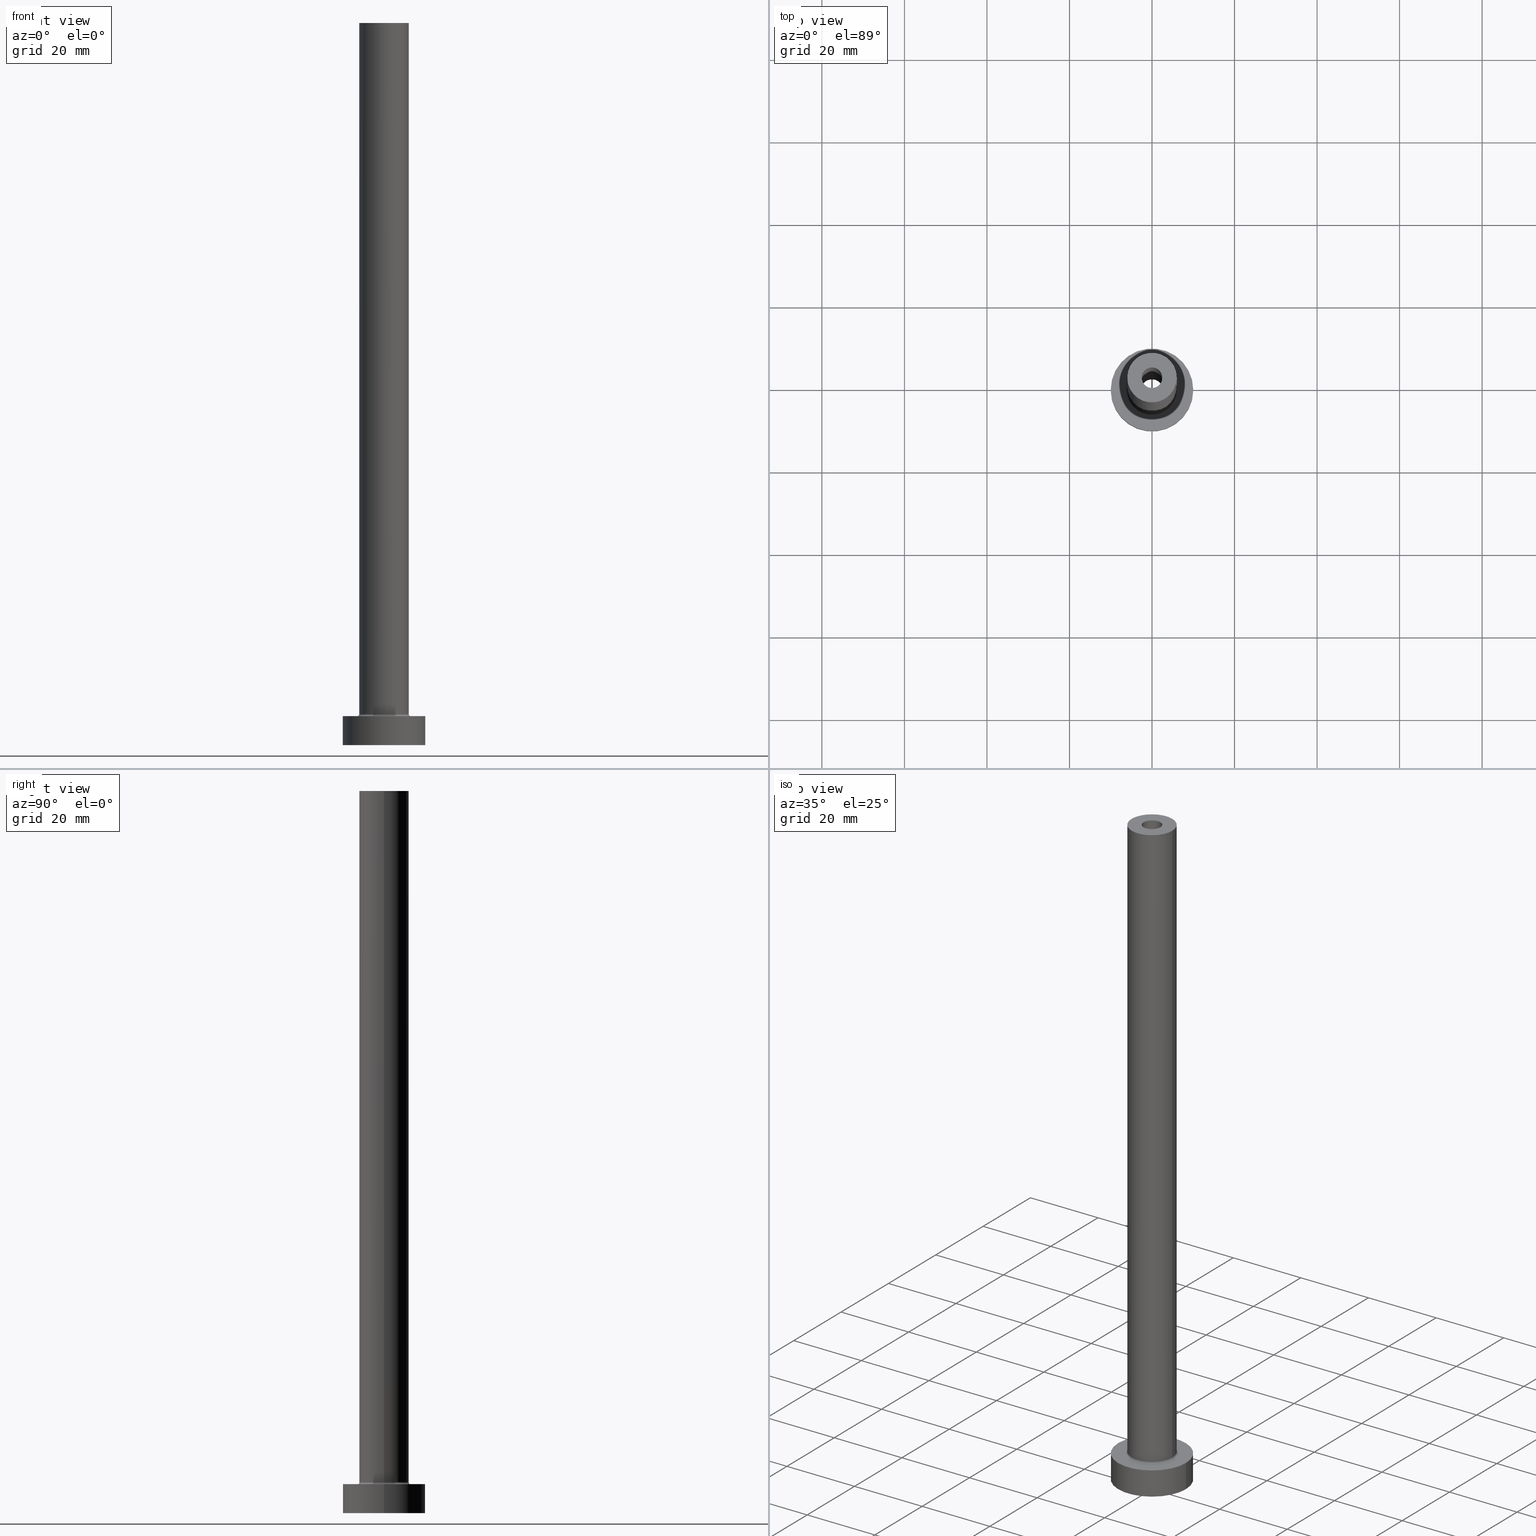
[diagram: canonical four-view strip — front | top / right | iso, engineering-drawing reading convention]
A machine part, canonical four-view strip (front | top / right | iso — engineering-drawing reading convention). The complete STEP part file that produces these views, byte-faithful:
ISO-10303-21;
HEADER;
FILE_DESCRIPTION (( 'STEP AP203' ),
    '1' );
FILE_NAME ('16ac.STEP',
    '2023-02-13T16:47:17',
    ( '' ),
    ( '' ),
    'SwSTEP 2.0',
    'SolidWorks 2019',
    '' );
FILE_SCHEMA (( 'CONFIG_CONTROL_DESIGN' ));
ENDSEC;

DATA;
#1 = DATE_AND_TIME ( #70, #306 ) ;
#2 = LINE ( 'NONE', #429, #175 ) ;
#3 = EDGE_CURVE ( 'NONE', #329, #367, #446, .T. ) ;
#4 = COORDINATED_UNIVERSAL_TIME_OFFSET ( 1, 0, .AHEAD. ) ;
#5 = ORIENTED_EDGE ( 'NONE', *, *, #51, .T. ) ;
#6 =( NAMED_UNIT ( * ) SI_UNIT ( $, .STERADIAN. ) SOLID_ANGLE_UNIT ( ) );
#7 = CIRCLE ( 'NONE', #374, 6.500000000000000888 ) ;
#8 =( NAMED_UNIT ( * ) PLANE_ANGLE_UNIT ( ) SI_UNIT ( $, .RADIAN. ) );
#9 = ORIENTED_EDGE ( 'NONE', *, *, #116, .F. ) ;
#10 = CARTESIAN_POINT ( 'NONE',  ( 0.000000000000000000, 0.000000000000000000, 175.0000000000000284 ) ) ;
#11 = ORIENTED_EDGE ( 'NONE', *, *, #3, .T. ) ;
#12 = APPROVAL_DATE_TIME ( #229, #168 ) ;
#13 = CARTESIAN_POINT ( 'NONE',  ( 0.000000000000000000, 0.000000000000000000, 175.0000000000000284 ) ) ;
#14 = AXIS2_PLACEMENT_3D ( 'NONE', #345, #34, #409 ) ;
#15 = ORIENTED_EDGE ( 'NONE', *, *, #426, .F. ) ;
#16 = EDGE_CURVE ( 'NONE', #222, #292, #304, .T. ) ;
#17 = CARTESIAN_POINT ( 'NONE',  ( 0.000000000000000000, 0.000000000000000000, 175.0000000000000284 ) ) ;
#18 = ORIENTED_EDGE ( 'NONE', *, *, #284, .F. ) ;
#19 = ADVANCED_FACE ( 'NONE', ( #410, #415 ), #383, .F. ) ;
#20 = DIRECTION ( 'NONE',  ( -0.000000000000000000, -0.000000000000000000, -1.000000000000000000 ) ) ;
#21 = EDGE_LOOP ( 'NONE', ( #301, #66 ) ) ;
#22 = AXIS2_PLACEMENT_3D ( 'NONE', #318, #376, #209 ) ;
#23 = CIRCLE ( 'NONE', #235, 10.00000000000000000 ) ;
#24 = ORIENTED_EDGE ( 'NONE', *, *, #132, .F. ) ;
#25 = COORDINATED_UNIVERSAL_TIME_OFFSET ( 1, 0, .AHEAD. ) ;
#26 = CARTESIAN_POINT ( 'NONE',  ( 0.000000000000000000, 0.000000000000000000, 175.0000000000000284 ) ) ;
#27 = DIRECTION ( 'NONE',  ( 0.000000000000000000, 0.000000000000000000, -1.000000000000000000 ) ) ;
#28 = COORDINATED_UNIVERSAL_TIME_OFFSET ( 1, 0, .AHEAD. ) ;
#29 = FACE_OUTER_BOUND ( 'NONE', #76, .T. ) ;
#30 = CARTESIAN_POINT ( 'NONE',  ( 0.000000000000000000, 0.000000000000000000, 0.000000000000000000 ) ) ;
#31 = CIRCLE ( 'NONE', #271, 2.649999999999999911 ) ;
#32 = LOCAL_TIME ( 17, 47, 17.00000000000000000, #360 ) ;
#33 = DIRECTION ( 'NONE',  ( 0.000000000000000000, 0.000000000000000000, 1.000000000000000000 ) ) ;
#34 = DIRECTION ( 'NONE',  ( -0.000000000000000000, -0.000000000000000000, -1.000000000000000000 ) ) ;
#35 = EDGE_CURVE ( 'NONE', #367, #357, #162, .T. ) ;
#36 = PERSON_AND_ORGANIZATION_ROLE ( 'creator' ) ;
#37 = PRODUCT_DEFINITION_SHAPE ( 'NONE', 'NONE',  #199 ) ;
#38 = APPROVAL_STATUS ( 'not_yet_approved' ) ;
#39 = ORIENTED_EDGE ( 'NONE', *, *, #385, .T. ) ;
#40 = ORIENTED_EDGE ( 'NONE', *, *, #433, .F. ) ;
#41 = PERSON_AND_ORGANIZATION ( #378, #83 ) ;
#42 = CARTESIAN_POINT ( 'NONE',  ( 0.000000000000000000, 0.000000000000000000, 0.000000000000000000 ) ) ;
#43 = VERTEX_POINT ( 'NONE', #448 ) ;
#44 = EDGE_CURVE ( 'NONE', #115, #430, #456, .T. ) ;
#45 = VECTOR ( 'NONE', #257, 1000.000000000000000 ) ;
#46 =( GEOMETRIC_REPRESENTATION_CONTEXT ( 3 ) GLOBAL_UNCERTAINTY_ASSIGNED_CONTEXT ( ( #213 ) ) GLOBAL_UNIT_ASSIGNED_CONTEXT ( ( #428, #8, #6 ) ) REPRESENTATION_CONTEXT ( 'NONE', 'WORKASPACE' ) );
#47 = ORIENTED_EDGE ( 'NONE', *, *, #307, .T. ) ;
#48 = DIRECTION ( 'NONE',  ( -0.000000000000000000, -0.000000000000000000, -1.000000000000000000 ) ) ;
#49 = VERTEX_POINT ( 'NONE', #219 ) ;
#50 = PERSON_AND_ORGANIZATION_ROLE ( 'creator' ) ;
#51 = EDGE_CURVE ( 'NONE', #90, #160, #80, .T. ) ;
#52 = DIRECTION ( 'NONE',  ( 1.000000000000000000, 0.000000000000000000, -0.000000000000000000 ) ) ;
#53 = CARTESIAN_POINT ( 'NONE',  ( 6.000000000000000888, 7.347880794884119736E-16, 175.0000000000000284 ) ) ;
#54 = AXIS2_PLACEMENT_3D ( 'NONE', #17, #273, #302 ) ;
#55 = ORIENTED_EDGE ( 'NONE', *, *, #203, .F. ) ;
#56 = DIRECTION ( 'NONE',  ( 0.000000000000000000, 0.000000000000000000, 1.000000000000000000 ) ) ;
#57 = VERTEX_POINT ( 'NONE', #224 ) ;
#58 = DIRECTION ( 'NONE',  ( -1.000000000000000000, 0.000000000000000000, 0.000000000000000000 ) ) ;
#59 = EDGE_LOOP ( 'NONE', ( #246, #338 ) ) ;
#60 = CYLINDRICAL_SURFACE ( 'NONE', #250, 10.00000000000000000 ) ;
#61 = DATE_AND_TIME ( #99, #194 ) ;
#62 = DIRECTION ( 'NONE',  ( 0.000000000000000000, 0.000000000000000000, -1.000000000000000000 ) ) ;
#63 = DIRECTION ( 'NONE',  ( -0.000000000000000000, -0.000000000000000000, -1.000000000000000000 ) ) ;
#64 = CC_DESIGN_PERSON_AND_ORGANIZATION_ASSIGNMENT ( #121, #50, ( #382 ) ) ;
#65 = CARTESIAN_POINT ( 'NONE',  ( 0.000000000000000000, 0.000000000000000000, 7.000000000000000000 ) ) ;
#66 = ORIENTED_EDGE ( 'NONE', *, *, #268, .T. ) ;
#67 = CIRCLE ( 'NONE', #54, 2.500000000000000000 ) ;
#68 = CARTESIAN_POINT ( 'NONE',  ( 0.000000000000000000, 0.000000000000000000, 137.4953318805773961 ) ) ;
#69 = DIRECTION ( 'NONE',  ( 0.000000000000000000, 0.000000000000000000, 1.000000000000000000 ) ) ;
#70 = CALENDAR_DATE ( 2023, 13, 2 ) ;
#71 = EDGE_CURVE ( 'NONE', #90, #336, #2, .T. ) ;
#72 = EDGE_LOOP ( 'NONE', ( #439, #174, #55, #373 ) ) ;
#73 = AXIS2_PLACEMENT_3D ( 'NONE', #30, #244, #216 ) ;
#74 = CIRCLE ( 'NONE', #228, 2.500000000000000000 ) ;
#75 = PLANE ( 'NONE',  #163 ) ;
#76 = EDGE_LOOP ( 'NONE', ( #18, #11, #198, #316 ) ) ;
#77 = ADVANCED_FACE ( 'NONE', ( #149 ), #230, .T. ) ;
#78 = CARTESIAN_POINT ( 'NONE',  ( 0.000000000000000000, 0.000000000000000000, 0.000000000000000000 ) ) ;
#79 = DIRECTION ( 'NONE',  ( -0.000000000000000000, -0.000000000000000000, -1.000000000000000000 ) ) ;
#80 = CIRCLE ( 'NONE', #341, 6.000000000000000888 ) ;
#81 = PERSON_AND_ORGANIZATION_ROLE ( 'design_supplier' ) ;
#82 = AXIS2_PLACEMENT_3D ( 'NONE', #317, #177, #278 ) ;
#83 = ORGANIZATION ( 'NEUR�EN�', 'NEUR�EN�', '' ) ;
#84 = CC_DESIGN_DATE_AND_TIME_ASSIGNMENT ( #61, #362, ( #144 ) ) ;
#85 = CALENDAR_DATE ( 2023, 13, 2 ) ;
#86 = CARTESIAN_POINT ( 'NONE',  ( 0.000000000000000000, 0.000000000000000000, 7.500000000000007105 ) ) ;
#87 = ADVANCED_FACE ( 'NONE', ( #392 ), #288, .F. ) ;
#88 = EDGE_LOOP ( 'NONE', ( #355, #344, #207, #196 ) ) ;
#89 = DIRECTION ( 'NONE',  ( -0.000000000000000000, -0.000000000000000000, -1.000000000000000000 ) ) ;
#90 = VERTEX_POINT ( 'NONE', #185 ) ;
#91 = PLANE ( 'NONE',  #122 ) ;
#92 = VECTOR ( 'NONE', #170, 1000.000000000000000 ) ;
#93 = DIRECTION ( 'NONE',  ( -0.000000000000000000, -0.000000000000000000, -1.000000000000000000 ) ) ;
#94 = ORIENTED_EDGE ( 'NONE', *, *, #445, .T. ) ;
#95 = ADVANCED_FACE ( 'NONE', ( #154 ), #325, .T. ) ;
#96 = FACE_OUTER_BOUND ( 'NONE', #289, .T. ) ;
#97 = CARTESIAN_POINT ( 'NONE',  ( 0.000000000000000000, 0.000000000000000000, 7.000000000000000000 ) ) ;
#98 = CIRCLE ( 'NONE', #381, 10.00000000000000000 ) ;
#99 = CALENDAR_DATE ( 2023, 13, 2 ) ;
#100 = APPROVAL_PERSON_ORGANIZATION ( #397, #148, #298 ) ;
#101 = ADVANCED_FACE ( 'NONE', ( #291, #114 ), #75, .F. ) ;
#102 = CARTESIAN_POINT ( 'NONE',  ( -6.000000000000000888, 0.000000000000000000, 7.500000000000007105 ) ) ;
#103 = EDGE_CURVE ( 'NONE', #357, #367, #23, .T. ) ;
#104 = FACE_OUTER_BOUND ( 'NONE', #444, .T. ) ;
#105 = CARTESIAN_POINT ( 'NONE',  ( 0.000000000000000000, 0.000000000000000000, 0.000000000000000000 ) ) ;
#106 = DIRECTION ( 'NONE',  ( 0.000000000000000000, 0.000000000000000000, 1.000000000000000000 ) ) ;
#107 = AXIS2_PLACEMENT_3D ( 'NONE', #105, #69, #352 ) ;
#108 = AXIS2_PLACEMENT_3D ( 'NONE', #395, #424, #422 ) ;
#109 = DIRECTION ( 'NONE',  ( 1.224646799147353207E-16, 1.000000000000000000, -0.000000000000000000 ) ) ;
#110 = DIRECTION ( 'NONE',  ( 0.000000000000000000, 0.000000000000000000, 1.000000000000000000 ) ) ;
#111 = ORIENTED_EDGE ( 'NONE', *, *, #44, .F. ) ;
#112 = AXIS2_PLACEMENT_3D ( 'NONE', #218, #260, #390 ) ;
#113 = CARTESIAN_POINT ( 'NONE',  ( 0.000000000000000000, 0.000000000000000000, 130.0000000000000000 ) ) ;
#114 = FACE_OUTER_BOUND ( 'NONE', #118, .T. ) ;
#115 = VERTEX_POINT ( 'NONE', #126 ) ;
#116 = EDGE_CURVE ( 'NONE', #160, #57, #128, .T. ) ;
#117 = CARTESIAN_POINT ( 'NONE',  ( 0.000000000000000000, 0.000000000000000000, 175.0000000000000284 ) ) ;
#118 = EDGE_LOOP ( 'NONE', ( #232, #237 ) ) ;
#119 = APPROVAL_ROLE ( '' ) ;
#120 = PRODUCT_RELATED_PRODUCT_CATEGORY ( 'detail', '', ( #457 ) ) ;
#121 = PERSON_AND_ORGANIZATION ( #378, #83 ) ;
#122 = AXIS2_PLACEMENT_3D ( 'NONE', #339, #369, #52 ) ;
#123 = DIRECTION ( 'NONE',  ( 1.000000000000000000, 0.000000000000000000, 0.000000000000000000 ) ) ;
#124 = ORIENTED_EDGE ( 'NONE', *, *, #426, .T. ) ;
#125 = APPROVAL_STATUS ( 'not_yet_approved' ) ;
#126 = CARTESIAN_POINT ( 'NONE',  ( -2.500000000000000000, 0.000000000000000000, 175.0000000000000284 ) ) ;
#127 = ORIENTED_EDGE ( 'NONE', *, *, #35, .F. ) ;
#128 = LINE ( 'NONE', #53, #137 ) ;
#129 = ORIENTED_EDGE ( 'NONE', *, *, #214, .T. ) ;
#130 = CARTESIAN_POINT ( 'NONE',  ( -10.00000000000000000, 0.000000000000000000, 7.000000000000000000 ) ) ;
#131 = AXIS2_PLACEMENT_3D ( 'NONE', #13, #195, #335 ) ;
#132 = EDGE_CURVE ( 'NONE', #270, #115, #67, .T. ) ;
#133 = DIRECTION ( 'NONE',  ( 0.000000000000000000, 0.000000000000000000, -1.000000000000000000 ) ) ;
#134 = ORIENTED_EDGE ( 'NONE', *, *, #387, .F. ) ;
#135 = DIRECTION ( 'NONE',  ( -1.000000000000000000, 0.000000000000000000, 0.000000000000000000 ) ) ;
#136 = DIRECTION ( 'NONE',  ( 1.000000000000000000, 0.000000000000000000, 0.000000000000000000 ) ) ;
#137 = VECTOR ( 'NONE', #93, 1000.000000000000000 ) ;
#138 = CARTESIAN_POINT ( 'NONE',  ( 0.000000000000000000, 0.000000000000000000, 130.0000000000000000 ) ) ;
#139 = CARTESIAN_POINT ( 'NONE',  ( 2.500000000000000000, 3.061616997868383141E-16, 175.0000000000000284 ) ) ;
#140 = CARTESIAN_POINT ( 'NONE',  ( 10.00000000000000000, 1.224646799147353256E-15, 7.000000000000000000 ) ) ;
#141 = CARTESIAN_POINT ( 'NONE',  ( -2.649999999999999911, 0.000000000000000000, 0.000000000000000000 ) ) ;
#142 = EDGE_LOOP ( 'NONE', ( #134, #24 ) ) ;
#143 = VECTOR ( 'NONE', #89, 1000.000000000000000 ) ;
#144 = SECURITY_CLASSIFICATION ( '', '', #332 ) ;
#145 = COORDINATED_UNIVERSAL_TIME_OFFSET ( 1, 0, .AHEAD. ) ;
#146 = CARTESIAN_POINT ( 'NONE',  ( 0.000000000000000000, 0.000000000000000000, 130.0000000000000000 ) ) ;
#147 = DIRECTION ( 'NONE',  ( -0.000000000000000000, -0.000000000000000000, -1.000000000000000000 ) ) ;
#148 = APPROVAL ( #267, 'NEUR�EN�' ) ;
#149 = FACE_OUTER_BOUND ( 'NONE', #225, .T. ) ;
#150 = CIRCLE ( 'NONE', #293, 6.000000000000000888 ) ;
#151 = PERSON_AND_ORGANIZATION_ROLE ( 'design_owner' ) ;
#152 = ORIENTED_EDGE ( 'NONE', *, *, #433, .T. ) ;
#153 = DIRECTION ( 'NONE',  ( 1.000000000000000000, 0.000000000000000000, 0.000000000000000000 ) ) ;
#154 = FACE_OUTER_BOUND ( 'NONE', #259, .T. ) ;
#155 = VERTEX_POINT ( 'NONE', #363 ) ;
#156 = CARTESIAN_POINT ( 'NONE',  ( 2.649999999999999911, 3.245314017740485962E-16, 0.000000000000000000 ) ) ;
#157 = CYLINDRICAL_SURFACE ( 'NONE', #210, 2.500000000000000000 ) ;
#158 = ORIENTED_EDGE ( 'NONE', *, *, #307, .F. ) ;
#159 = DIRECTION ( 'NONE',  ( 1.000000000000000000, 0.000000000000000000, 0.000000000000000000 ) ) ;
#160 = VERTEX_POINT ( 'NONE', #197 ) ;
#161 = ADVANCED_FACE ( 'NONE', ( #300, #96 ), #236, .T. ) ;
#162 = CIRCLE ( 'NONE', #22, 10.00000000000000000 ) ;
#163 = AXIS2_PLACEMENT_3D ( 'NONE', #261, #319, #356 ) ;
#164 = AXIS2_PLACEMENT_3D ( 'NONE', #117, #147, #255 ) ;
#165 = ORIENTED_EDGE ( 'NONE', *, *, #132, .T. ) ;
#166 = CC_DESIGN_SECURITY_CLASSIFICATION ( #144, ( #382 ) ) ;
#167 = DIRECTION ( 'NONE',  ( 1.000000000000000000, 0.000000000000000000, 0.000000000000000000 ) ) ;
#168 = APPROVAL ( #125, 'NEUR�EN�' ) ;
#169 = ORIENTED_EDGE ( 'NONE', *, *, #284, .T. ) ;
#170 = DIRECTION ( 'NONE',  ( 0.000000000000000000, 0.000000000000000000, -1.000000000000000000 ) ) ;
#171 = EDGE_LOOP ( 'NONE', ( #40, #39, #47, #437 ) ) ;
#172 = PERSON_AND_ORGANIZATION_ROLE ( 'classification_officer' ) ;
#173 = CARTESIAN_POINT ( 'NONE',  ( 6.500000000000000888, 0.000000000000000000, 7.500000000000007105 ) ) ;
#174 = ORIENTED_EDGE ( 'NONE', *, *, #359, .T. ) ;
#175 = VECTOR ( 'NONE', #48, 1000.000000000000000 ) ;
#176 = MANIFOLD_SOLID_BREP ( 'Odebrat vysunut�m4', #411 ) ;
#177 = DIRECTION ( 'NONE',  ( 0.000000000000000000, 0.000000000000000000, 1.000000000000000000 ) ) ;
#178 = DIRECTION ( 'NONE',  ( 0.000000000000000000, 0.000000000000000000, 1.000000000000000000 ) ) ;
#179 = ORIENTED_EDGE ( 'NONE', *, *, #346, .F. ) ;
#180 = DIRECTION ( 'NONE',  ( 0.000000000000000000, 0.000000000000000000, 1.000000000000000000 ) ) ;
#181 = APPLICATION_CONTEXT ( 'configuration controlled 3d designs of mechanical parts and assemblies' ) ;
#182 = AXIS2_PLACEMENT_3D ( 'NONE', #10, #269, #272 ) ;
#183 = FACE_OUTER_BOUND ( 'NONE', #72, .T. ) ;
#184 = CC_DESIGN_PERSON_AND_ORGANIZATION_ASSIGNMENT ( #41, #151, ( #457 ) ) ;
#185 = CARTESIAN_POINT ( 'NONE',  ( -6.000000000000000888, 0.000000000000000000, 175.0000000000000284 ) ) ;
#186 = ORIENTED_EDGE ( 'NONE', *, *, #454, .F. ) ;
#187 = CARTESIAN_POINT ( 'NONE',  ( 0.000000000000000000, 0.000000000000000000, 175.0000000000000284 ) ) ;
#188 = ORIENTED_EDGE ( 'NONE', *, *, #217, .T. ) ;
#189 = CIRCLE ( 'NONE', #412, 2.649999999999999911 ) ;
#190 = ORIENTED_EDGE ( 'NONE', *, *, #71, .F. ) ;
#191 = CARTESIAN_POINT ( 'NONE',  ( -10.00000000000000000, 0.000000000000000000, 7.000000000000000000 ) ) ;
#192 = ORIENTED_EDGE ( 'NONE', *, *, #116, .T. ) ;
#193 = EDGE_LOOP ( 'NONE', ( #234, #127 ) ) ;
#194 = LOCAL_TIME ( 17, 47, 17.00000000000000000, #28 ) ;
#195 = DIRECTION ( 'NONE',  ( 0.000000000000000000, 0.000000000000000000, 1.000000000000000000 ) ) ;
#196 = ORIENTED_EDGE ( 'NONE', *, *, #268, .F. ) ;
#197 = CARTESIAN_POINT ( 'NONE',  ( 6.000000000000000888, 7.347880794884119736E-16, 175.0000000000000284 ) ) ;
#198 = ORIENTED_EDGE ( 'NONE', *, *, #35, .T. ) ;
#199 = PRODUCT_DEFINITION ( 'NEZN�M�', '', #382, #313 ) ;
#200 = CARTESIAN_POINT ( 'NONE',  ( 0.000000000000000000, 0.000000000000000000, 0.000000000000000000 ) ) ;
#201 = CIRCLE ( 'NONE', #368, 0.5000000000000004441 ) ;
#202 = APPROVAL_PERSON_ORGANIZATION ( #274, #168, #449 ) ;
#203 = EDGE_CURVE ( 'NONE', #155, #303, #7, .T. ) ;
#204 = CARTESIAN_POINT ( 'NONE',  ( -6.500000000000000888, 7.960204194457796463E-16, 7.000000000000002665 ) ) ;
#205 = CARTESIAN_POINT ( 'NONE',  ( -2.500000000000000000, 0.000000000000000000, 175.0000000000000284 ) ) ;
#206 = DIRECTION ( 'NONE',  ( 1.000000000000000000, 0.000000000000000000, 0.000000000000000000 ) ) ;
#207 = ORIENTED_EDGE ( 'NONE', *, *, #333, .T. ) ;
#208 = CARTESIAN_POINT ( 'NONE',  ( -2.500000000000000000, 0.000000000000000000, 130.0000000000000000 ) ) ;
#209 = DIRECTION ( 'NONE',  ( 1.000000000000000000, 0.000000000000000000, 0.000000000000000000 ) ) ;
#210 = AXIS2_PLACEMENT_3D ( 'NONE', #245, #380, #135 ) ;
#211 = DIRECTION ( 'NONE',  ( 0.000000000000000000, 0.000000000000000000, -1.000000000000000000 ) ) ;
#212 = EDGE_CURVE ( 'NONE', #160, #90, #220, .T. ) ;
#213 = UNCERTAINTY_MEASURE_WITH_UNIT (LENGTH_MEASURE( 1.000000000000000082E-05 ), #428, 'distance_accuracy_value', 'NONE');
#214 = EDGE_CURVE ( 'NONE', #262, #357, #299, .T. ) ;
#215 = PERSON_AND_ORGANIZATION ( #378, #83 ) ;
#216 = DIRECTION ( 'NONE',  ( 1.000000000000000000, 0.000000000000000000, 0.000000000000000000 ) ) ;
#217 = EDGE_CURVE ( 'NONE', #336, #57, #150, .T. ) ;
#218 = CARTESIAN_POINT ( 'NONE',  ( 0.000000000000000000, 0.000000000000000000, 7.500000000000007105 ) ) ;
#219 = CARTESIAN_POINT ( 'NONE',  ( 2.500000000000000000, 3.061616997868383141E-16, 130.0000000000000000 ) ) ;
#220 = CIRCLE ( 'NONE', #182, 6.000000000000000888 ) ;
#221 = ADVANCED_FACE ( 'NONE', ( #402 ), #405, .F. ) ;
#222 = VERTEX_POINT ( 'NONE', #156 ) ;
#223 = MECHANICAL_CONTEXT ( 'NONE', #394, 'mechanical' ) ;
#224 = CARTESIAN_POINT ( 'NONE',  ( 6.000000000000000888, 7.347880794884119736E-16, 7.500000000000007105 ) ) ;
#225 = EDGE_LOOP ( 'NONE', ( #417, #192, #231, #190 ) ) ;
#226 = CARTESIAN_POINT ( 'NONE',  ( 0.000000000000000000, 0.000000000000000000, 175.0000000000000284 ) ) ;
#227 = VECTOR ( 'NONE', #280, 1000.000000000000000 ) ;
#228 = AXIS2_PLACEMENT_3D ( 'NONE', #26, #33, #413 ) ;
#229 = DATE_AND_TIME ( #85, #354 ) ;
#230 = CYLINDRICAL_SURFACE ( 'NONE', #164, 6.000000000000000888 ) ;
#231 = ORIENTED_EDGE ( 'NONE', *, *, #418, .T. ) ;
#232 = ORIENTED_EDGE ( 'NONE', *, *, #391, .F. ) ;
#233 = CC_DESIGN_DATE_AND_TIME_ASSIGNMENT ( #290, #286, ( #199 ) ) ;
#234 = ORIENTED_EDGE ( 'NONE', *, *, #103, .F. ) ;
#235 = AXIS2_PLACEMENT_3D ( 'NONE', #42, #56, #441 ) ;
#236 = PLANE ( 'NONE',  #131 ) ;
#237 = ORIENTED_EDGE ( 'NONE', *, *, #385, .F. ) ;
#238 = EDGE_LOOP ( 'NONE', ( #340, #124, #186, #111 ) ) ;
#239 = CARTESIAN_POINT ( 'NONE',  ( 0.000000000000000000, 0.000000000000000000, 7.500000000000007105 ) ) ;
#240 = EDGE_LOOP ( 'NONE', ( #406, #152, #294, #158 ) ) ;
#241 = PERSON_AND_ORGANIZATION ( #378, #83 ) ;
#242 = DIRECTION ( 'NONE',  ( -0.000000000000000000, -0.000000000000000000, -1.000000000000000000 ) ) ;
#243 = AXIS2_PLACEMENT_3D ( 'NONE', #435, #133, #58 ) ;
#244 = DIRECTION ( 'NONE',  ( -0.000000000000000000, -0.000000000000000000, -1.000000000000000000 ) ) ;
#245 = CARTESIAN_POINT ( 'NONE',  ( 0.000000000000000000, 0.000000000000000000, 175.0000000000000284 ) ) ;
#246 = ORIENTED_EDGE ( 'NONE', *, *, #454, .T. ) ;
#247 = DIRECTION ( 'NONE',  ( -1.000000000000000000, 0.000000000000000000, 0.000000000000000000 ) ) ;
#248 = ADVANCED_FACE ( 'NONE', ( #366, #372 ), #91, .T. ) ;
#249 = CARTESIAN_POINT ( 'NONE',  ( 0.000000000000000000, 0.000000000000000000, 7.000000000000000000 ) ) ;
#250 = AXIS2_PLACEMENT_3D ( 'NONE', #97, #242, #247 ) ;
#251 = DIRECTION ( 'NONE',  ( 0.000000000000000000, 0.000000000000000000, 1.000000000000000000 ) ) ;
#252 = APPROVAL ( #38, 'NEUR�EN�' ) ;
#253 = DIRECTION ( 'NONE',  ( 1.000000000000000000, 0.000000000000000000, 0.000000000000000000 ) ) ;
#254 = ADVANCED_FACE ( 'NONE', ( #337 ), #404, .F. ) ;
#255 = DIRECTION ( 'NONE',  ( -1.000000000000000000, 0.000000000000000000, 0.000000000000000000 ) ) ;
#256 = EDGE_LOOP ( 'NONE', ( #179, #393 ) ) ;
#257 = DIRECTION ( 'NONE',  ( 0.000000000000000000, 0.000000000000000000, -1.000000000000000000 ) ) ;
#258 = DIRECTION ( 'NONE',  ( 1.000000000000000000, 0.000000000000000000, 0.000000000000000000 ) ) ;
#259 = EDGE_LOOP ( 'NONE', ( #9, #434, #265, #188 ) ) ;
#260 = DIRECTION ( 'NONE',  ( 0.000000000000000000, 0.000000000000000000, 1.000000000000000000 ) ) ;
#261 = CARTESIAN_POINT ( 'NONE',  ( 0.000000000000000000, 0.000000000000000000, 130.0000000000000000 ) ) ;
#262 = VERTEX_POINT ( 'NONE', #191 ) ;
#263 = LOCAL_TIME ( 17, 47, 17.00000000000000000, #145 ) ;
#264 = FACE_OUTER_BOUND ( 'NONE', #361, .T. ) ;
#265 = ORIENTED_EDGE ( 'NONE', *, *, #71, .T. ) ;
#266 = ADVANCED_FACE ( 'NONE', ( #264 ), #157, .F. ) ;
#267 = APPROVAL_STATUS ( 'not_yet_approved' ) ;
#268 = EDGE_CURVE ( 'NONE', #303, #155, #436, .T. ) ;
#269 = DIRECTION ( 'NONE',  ( 0.000000000000000000, 0.000000000000000000, 1.000000000000000000 ) ) ;
#270 = VERTEX_POINT ( 'NONE', #139 ) ;
#271 = AXIS2_PLACEMENT_3D ( 'NONE', #138, #178, #136 ) ;
#272 = DIRECTION ( 'NONE',  ( 1.000000000000000000, 0.000000000000000000, 0.000000000000000000 ) ) ;
#273 = DIRECTION ( 'NONE',  ( 0.000000000000000000, 0.000000000000000000, 1.000000000000000000 ) ) ;
#274 = PERSON_AND_ORGANIZATION ( #378, #83 ) ;
#275 = CYLINDRICAL_SURFACE ( 'NONE', #389, 2.649999999999999911 ) ;
#276 = CARTESIAN_POINT ( 'NONE',  ( 10.00000000000000000, 1.224646799147353256E-15, 7.000000000000000000 ) ) ;
#277 = AXIS2_PLACEMENT_3D ( 'NONE', #113, #110, #253 ) ;
#278 = DIRECTION ( 'NONE',  ( 1.000000000000000000, 0.000000000000000000, 0.000000000000000000 ) ) ;
#279 = DIRECTION ( 'NONE',  ( 0.000000000000000000, -1.000000000000000000, 0.000000000000000000 ) ) ;
#280 = DIRECTION ( 'NONE',  ( -0.000000000000000000, -0.000000000000000000, -1.000000000000000000 ) ) ;
#281 = LINE ( 'NONE', #312, #92 ) ;
#282 = VECTOR ( 'NONE', #27, 1000.000000000000000 ) ;
#283 = CIRCLE ( 'NONE', #82, 2.649999999999999911 ) ;
#284 = EDGE_CURVE ( 'NONE', #329, #262, #98, .T. ) ;
#285 = AXIS2_PLACEMENT_3D ( 'NONE', #78, #180, #153 ) ;
#286 = DATE_TIME_ROLE ( 'creation_date' ) ;
#287 = CARTESIAN_POINT ( 'NONE',  ( 2.649999999999999911, 3.245314017740485962E-16, 137.4953318805773961 ) ) ;
#288 = CYLINDRICAL_SURFACE ( 'NONE', #450, 2.500000000000000000 ) ;
#289 = EDGE_LOOP ( 'NONE', ( #5, #400 ) ) ;
#290 = DATE_AND_TIME ( #459, #263 ) ;
#291 = FACE_BOUND ( 'NONE', #59, .T. ) ;
#292 = VERTEX_POINT ( 'NONE', #141 ) ;
#293 = AXIS2_PLACEMENT_3D ( 'NONE', #239, #438, #159 ) ;
#294 = ORIENTED_EDGE ( 'NONE', *, *, #16, .T. ) ;
#295 = APPLICATION_PROTOCOL_DEFINITION ( 'international standard', 'config_control_design', 1994, #181 ) ;
#296 = DIRECTION ( 'NONE',  ( 0.000000000000000000, 0.000000000000000000, 1.000000000000000000 ) ) ;
#297 = AXIS2_PLACEMENT_3D ( 'NONE', #65, #63, #167 ) ;
#298 = APPROVAL_ROLE ( '' ) ;
#299 = LINE ( 'NONE', #130, #143 ) ;
#300 = FACE_BOUND ( 'NONE', #142, .T. ) ;
#301 = ORIENTED_EDGE ( 'NONE', *, *, #203, .T. ) ;
#302 = DIRECTION ( 'NONE',  ( 1.000000000000000000, 0.000000000000000000, 0.000000000000000000 ) ) ;
#303 = VERTEX_POINT ( 'NONE', #204 ) ;
#304 = CIRCLE ( 'NONE', #73, 2.649999999999999911 ) ;
#305 = CIRCLE ( 'NONE', #108, 10.00000000000000000 ) ;
#306 = LOCAL_TIME ( 17, 47, 17.00000000000000000, #4 ) ;
#307 = EDGE_CURVE ( 'NONE', #43, #292, #281, .T. ) ;
#308 = CARTESIAN_POINT ( 'NONE',  ( -10.00000000000000000, 0.000000000000000000, 0.000000000000000000 ) ) ;
#309 = CARTESIAN_POINT ( 'NONE',  ( 0.000000000000000000, 0.000000000000000000, 7.500000000000007105 ) ) ;
#310 = CC_DESIGN_PERSON_AND_ORGANIZATION_ASSIGNMENT ( #215, #36, ( #199 ) ) ;
#311 = APPROVAL_DATE_TIME ( #408, #148 ) ;
#312 = CARTESIAN_POINT ( 'NONE',  ( -2.649999999999999911, 0.000000000000000000, 137.4953318805773961 ) ) ;
#313 = DESIGN_CONTEXT ( 'detailed design', #181, 'design' ) ;
#314 = VECTOR ( 'NONE', #62, 1000.000000000000000 ) ;
#315 = FACE_OUTER_BOUND ( 'NONE', #240, .T. ) ;
#316 = ORIENTED_EDGE ( 'NONE', *, *, #214, .F. ) ;
#317 = CARTESIAN_POINT ( 'NONE',  ( 0.000000000000000000, 0.000000000000000000, 130.0000000000000000 ) ) ;
#318 = CARTESIAN_POINT ( 'NONE',  ( 0.000000000000000000, 0.000000000000000000, 0.000000000000000000 ) ) ;
#319 = DIRECTION ( 'NONE',  ( 0.000000000000000000, 0.000000000000000000, 1.000000000000000000 ) ) ;
#320 = AXIS2_PLACEMENT_3D ( 'NONE', #226, #79, #432 ) ;
#321 = CC_DESIGN_APPROVAL ( #168, ( #144 ) ) ;
#322 = DIRECTION ( 'NONE',  ( 0.000000000000000000, 0.000000000000000000, 1.000000000000000000 ) ) ;
#323 = ORIENTED_EDGE ( 'NONE', *, *, #44, .T. ) ;
#324 = APPLICATION_PROTOCOL_DEFINITION ( 'international standard', 'config_control_design', 1994, #394 ) ;
#325 = CYLINDRICAL_SURFACE ( 'NONE', #320, 6.000000000000000888 ) ;
#326 = DIRECTION ( 'NONE',  ( 0.000000000000000000, 0.000000000000000000, 1.000000000000000000 ) ) ;
#327 = ORIENTED_EDGE ( 'NONE', *, *, #3, .F. ) ;
#328 = CIRCLE ( 'NONE', #350, 6.000000000000000888 ) ;
#329 = VERTEX_POINT ( 'NONE', #276 ) ;
#330 = ADVANCED_FACE ( 'NONE', ( #315 ), #275, .F. ) ;
#331 = ORIENTED_EDGE ( 'NONE', *, *, #103, .T. ) ;
#332 = SECURITY_CLASSIFICATION_LEVEL ( 'unclassified' ) ;
#333 = EDGE_CURVE ( 'NONE', #57, #155, #419, .T. ) ;
#334 = CARTESIAN_POINT ( 'NONE',  ( 0.000000000000000000, 0.000000000000000000, 7.000000000000000000 ) ) ;
#335 = DIRECTION ( 'NONE',  ( 1.000000000000000000, 0.000000000000000000, -0.000000000000000000 ) ) ;
#336 = VERTEX_POINT ( 'NONE', #102 ) ;
#337 = FACE_OUTER_BOUND ( 'NONE', #88, .T. ) ;
#338 = ORIENTED_EDGE ( 'NONE', *, *, #461, .T. ) ;
#339 = CARTESIAN_POINT ( 'NONE',  ( 0.000000000000000000, 0.000000000000000000, 7.000000000000000000 ) ) ;
#340 = ORIENTED_EDGE ( 'NONE', *, *, #387, .T. ) ;
#341 = AXIS2_PLACEMENT_3D ( 'NONE', #187, #322, #258 ) ;
#342 = CIRCLE ( 'NONE', #427, 2.500000000000000000 ) ;
#343 = APPROVAL_PERSON_ORGANIZATION ( #431, #252, #119 ) ;
#344 = ORIENTED_EDGE ( 'NONE', *, *, #418, .F. ) ;
#345 = CARTESIAN_POINT ( 'NONE',  ( 0.000000000000000000, 0.000000000000000000, 7.000000000000000000 ) ) ;
#346 = EDGE_CURVE ( 'NONE', #292, #222, #189, .T. ) ;
#347 = CALENDAR_DATE ( 2023, 13, 2 ) ;
#348 = CARTESIAN_POINT ( 'NONE',  ( 10.00000000000000000, 1.224646799147353256E-15, 0.000000000000000000 ) ) ;
#349 = LINE ( 'NONE', #287, #45 ) ;
#350 = AXIS2_PLACEMENT_3D ( 'NONE', #309, #251, #414 ) ;
#351 = DIRECTION ( 'NONE',  ( -0.000000000000000000, -0.000000000000000000, -1.000000000000000000 ) ) ;
#352 = DIRECTION ( 'NONE',  ( 1.000000000000000000, 0.000000000000000000, -0.000000000000000000 ) ) ;
#353 = AXIS2_PLACEMENT_3D ( 'NONE', #173, #279, #211 ) ;
#354 = LOCAL_TIME ( 17, 47, 17.00000000000000000, #25 ) ;
#355 = ORIENTED_EDGE ( 'NONE', *, *, #359, .F. ) ;
#356 = DIRECTION ( 'NONE',  ( 1.000000000000000000, 0.000000000000000000, -0.000000000000000000 ) ) ;
#357 = VERTEX_POINT ( 'NONE', #308 ) ;
#358 = TOROIDAL_SURFACE ( 'NONE', #112, 6.500000000000000888, 0.5000000000000000000 ) ;
#359 = EDGE_CURVE ( 'NONE', #336, #303, #201, .T. ) ;
#360 = COORDINATED_UNIVERSAL_TIME_OFFSET ( 1, 0, .AHEAD. ) ;
#361 = EDGE_LOOP ( 'NONE', ( #15, #165, #323, #364 ) ) ;
#362 = DATE_TIME_ROLE ( 'classification_date' ) ;
#363 = CARTESIAN_POINT ( 'NONE',  ( 6.500000000000000888, 0.000000000000000000, 7.000000000000002665 ) ) ;
#364 = ORIENTED_EDGE ( 'NONE', *, *, #461, .F. ) ;
#365 = PERSON_AND_ORGANIZATION ( #378, #83 ) ;
#366 = FACE_BOUND ( 'NONE', #21, .T. ) ;
#367 = VERTEX_POINT ( 'NONE', #348 ) ;
#368 = AXIS2_PLACEMENT_3D ( 'NONE', #377, #109, #416 ) ;
#369 = DIRECTION ( 'NONE',  ( 0.000000000000000000, 0.000000000000000000, 1.000000000000000000 ) ) ;
#370 = ORIENTED_EDGE ( 'NONE', *, *, #445, .F. ) ;
#371 = ADVANCED_FACE ( 'NONE', ( #29 ), #452, .T. ) ;
#372 = FACE_OUTER_BOUND ( 'NONE', #440, .T. ) ;
#373 = ORIENTED_EDGE ( 'NONE', *, *, #333, .F. ) ;
#374 = AXIS2_PLACEMENT_3D ( 'NONE', #334, #20, #442 ) ;
#375 = LINE ( 'NONE', #379, #314 ) ;
#376 = DIRECTION ( 'NONE',  ( 0.000000000000000000, 0.000000000000000000, 1.000000000000000000 ) ) ;
#377 = CARTESIAN_POINT ( 'NONE',  ( -6.500000000000000888, 7.960204194457796463E-16, 7.500000000000007105 ) ) ;
#378 = PERSON ( 'NEUR�EN�', 'NEUR�EN�', 'NEUR�EN�', ('NEUR�EN�'), ('NEUR�EN�'), ('NEUR�EN�') ) ;
#379 = CARTESIAN_POINT ( 'NONE',  ( 2.500000000000000000, 3.061616997868383141E-16, 175.0000000000000284 ) ) ;
#380 = DIRECTION ( 'NONE',  ( 0.000000000000000000, 0.000000000000000000, -1.000000000000000000 ) ) ;
#381 = AXIS2_PLACEMENT_3D ( 'NONE', #249, #106, #447 ) ;
#382 = PRODUCT_DEFINITION_FORMATION_WITH_SPECIFIED_SOURCE ( 'LIBOVOLN�', '', #457, .NOT_KNOWN. ) ;
#383 = PLANE ( 'NONE',  #107 ) ;
#384 = APPROVAL_DATE_TIME ( #1, #252 ) ;
#385 = EDGE_CURVE ( 'NONE', #403, #43, #31, .T. ) ;
#386 = DIRECTION ( 'NONE',  ( 1.000000000000000000, 0.000000000000000000, 0.000000000000000000 ) ) ;
#387 = EDGE_CURVE ( 'NONE', #115, #270, #74, .T. ) ;
#388 = DIRECTION ( 'NONE',  ( -1.000000000000000000, 0.000000000000000000, 0.000000000000000000 ) ) ;
#389 = AXIS2_PLACEMENT_3D ( 'NONE', #68, #420, #453 ) ;
#390 = DIRECTION ( 'NONE',  ( 1.000000000000000000, 0.000000000000000000, 0.000000000000000000 ) ) ;
#391 = EDGE_CURVE ( 'NONE', #43, #403, #283, .T. ) ;
#392 = FACE_OUTER_BOUND ( 'NONE', #238, .T. ) ;
#393 = ORIENTED_EDGE ( 'NONE', *, *, #16, .F. ) ;
#394 = APPLICATION_CONTEXT ( 'configuration controlled 3d designs of mechanical parts and assemblies' ) ;
#395 = CARTESIAN_POINT ( 'NONE',  ( 0.000000000000000000, 0.000000000000000000, 7.000000000000000000 ) ) ;
#396 = DIRECTION ( 'NONE',  ( 0.000000000000000000, 0.000000000000000000, -1.000000000000000000 ) ) ;
#397 = PERSON_AND_ORGANIZATION ( #378, #83 ) ;
#398 = AXIS2_PLACEMENT_3D ( 'NONE', #86, #296, #123 ) ;
#399 = CC_DESIGN_APPROVAL ( #148, ( #382 ) ) ;
#400 = ORIENTED_EDGE ( 'NONE', *, *, #212, .T. ) ;
#401 = SHAPE_DEFINITION_REPRESENTATION ( #37, #451 ) ;
#402 = FACE_OUTER_BOUND ( 'NONE', #171, .T. ) ;
#403 = VERTEX_POINT ( 'NONE', #455 ) ;
#404 = TOROIDAL_SURFACE ( 'NONE', #398, 6.500000000000000888, 0.5000000000000000000 ) ;
#405 = CYLINDRICAL_SURFACE ( 'NONE', #243, 2.649999999999999911 ) ;
#406 = ORIENTED_EDGE ( 'NONE', *, *, #391, .T. ) ;
#407 = CC_DESIGN_PERSON_AND_ORGANIZATION_ASSIGNMENT ( #365, #81, ( #382 ) ) ;
#408 = DATE_AND_TIME ( #347, #32 ) ;
#409 = DIRECTION ( 'NONE',  ( -1.000000000000000000, 0.000000000000000000, 0.000000000000000000 ) ) ;
#410 = FACE_BOUND ( 'NONE', #256, .T. ) ;
#411 = CLOSED_SHELL ( 'NONE', ( #87, #330, #460, #77, #371, #423, #248, #19, #95, #161, #254, #221, #101, #266 ) ) ;
#412 = AXIS2_PLACEMENT_3D ( 'NONE', #200, #351, #206 ) ;
#413 = DIRECTION ( 'NONE',  ( 1.000000000000000000, 0.000000000000000000, 0.000000000000000000 ) ) ;
#414 = DIRECTION ( 'NONE',  ( 1.000000000000000000, 0.000000000000000000, 0.000000000000000000 ) ) ;
#415 = FACE_OUTER_BOUND ( 'NONE', #193, .T. ) ;
#416 = DIRECTION ( 'NONE',  ( -1.000000000000000000, 1.224646799147351482E-16, 0.000000000000000000 ) ) ;
#417 = ORIENTED_EDGE ( 'NONE', *, *, #212, .F. ) ;
#418 = EDGE_CURVE ( 'NONE', #57, #336, #328, .T. ) ;
#419 = CIRCLE ( 'NONE', #353, 0.5000000000000004441 ) ;
#420 = DIRECTION ( 'NONE',  ( 0.000000000000000000, 0.000000000000000000, -1.000000000000000000 ) ) ;
#421 = CC_DESIGN_APPROVAL ( #252, ( #199 ) ) ;
#422 = DIRECTION ( 'NONE',  ( 1.000000000000000000, 0.000000000000000000, 0.000000000000000000 ) ) ;
#423 = ADVANCED_FACE ( 'NONE', ( #104 ), #60, .T. ) ;
#424 = DIRECTION ( 'NONE',  ( 0.000000000000000000, 0.000000000000000000, 1.000000000000000000 ) ) ;
#425 = CARTESIAN_POINT ( 'NONE',  ( 0.000000000000000000, 0.000000000000000000, 175.0000000000000284 ) ) ;
#426 = EDGE_CURVE ( 'NONE', #270, #49, #375, .T. ) ;
#427 = AXIS2_PLACEMENT_3D ( 'NONE', #146, #326, #386 ) ;
#428 =( LENGTH_UNIT ( ) NAMED_UNIT ( * ) SI_UNIT ( .MILLI., .METRE. ) );
#429 = CARTESIAN_POINT ( 'NONE',  ( -6.000000000000000888, 0.000000000000000000, 175.0000000000000284 ) ) ;
#430 = VERTEX_POINT ( 'NONE', #208 ) ;
#431 = PERSON_AND_ORGANIZATION ( #378, #83 ) ;
#432 = DIRECTION ( 'NONE',  ( -1.000000000000000000, 0.000000000000000000, 0.000000000000000000 ) ) ;
#433 = EDGE_CURVE ( 'NONE', #403, #222, #349, .T. ) ;
#434 = ORIENTED_EDGE ( 'NONE', *, *, #51, .F. ) ;
#435 = CARTESIAN_POINT ( 'NONE',  ( 0.000000000000000000, 0.000000000000000000, 137.4953318805773961 ) ) ;
#436 = CIRCLE ( 'NONE', #297, 6.500000000000000888 ) ;
#437 = ORIENTED_EDGE ( 'NONE', *, *, #346, .T. ) ;
#438 = DIRECTION ( 'NONE',  ( 0.000000000000000000, 0.000000000000000000, 1.000000000000000000 ) ) ;
#439 = ORIENTED_EDGE ( 'NONE', *, *, #217, .F. ) ;
#440 = EDGE_LOOP ( 'NONE', ( #94, #169 ) ) ;
#441 = DIRECTION ( 'NONE',  ( 1.000000000000000000, 0.000000000000000000, 0.000000000000000000 ) ) ;
#442 = DIRECTION ( 'NONE',  ( 1.000000000000000000, 0.000000000000000000, 0.000000000000000000 ) ) ;
#443 = CC_DESIGN_PERSON_AND_ORGANIZATION_ASSIGNMENT ( #241, #172, ( #144 ) ) ;
#444 = EDGE_LOOP ( 'NONE', ( #327, #370, #129, #331 ) ) ;
#445 = EDGE_CURVE ( 'NONE', #262, #329, #305, .T. ) ;
#446 = LINE ( 'NONE', #140, #227 ) ;
#447 = DIRECTION ( 'NONE',  ( 1.000000000000000000, 0.000000000000000000, 0.000000000000000000 ) ) ;
#448 = CARTESIAN_POINT ( 'NONE',  ( -2.649999999999999911, 0.000000000000000000, 130.0000000000000000 ) ) ;
#449 = APPROVAL_ROLE ( '' ) ;
#450 = AXIS2_PLACEMENT_3D ( 'NONE', #425, #396, #388 ) ;
#451 = ADVANCED_BREP_SHAPE_REPRESENTATION ( '16ac', ( #176, #285 ), #46 ) ;
#452 = CYLINDRICAL_SURFACE ( 'NONE', #14, 10.00000000000000000 ) ;
#453 = DIRECTION ( 'NONE',  ( -1.000000000000000000, 0.000000000000000000, 0.000000000000000000 ) ) ;
#454 = EDGE_CURVE ( 'NONE', #430, #49, #458, .T. ) ;
#455 = CARTESIAN_POINT ( 'NONE',  ( 2.649999999999999911, 3.245314017740485962E-16, 130.0000000000000000 ) ) ;
#456 = LINE ( 'NONE', #205, #282 ) ;
#457 = PRODUCT ( '16ac', '16ac', '', ( #223 ) ) ;
#458 = CIRCLE ( 'NONE', #277, 2.500000000000000000 ) ;
#459 = CALENDAR_DATE ( 2023, 13, 2 ) ;
#460 = ADVANCED_FACE ( 'NONE', ( #183 ), #358, .F. ) ;
#461 = EDGE_CURVE ( 'NONE', #49, #430, #342, .T. ) ;
ENDSEC;
END-ISO-10303-21;
